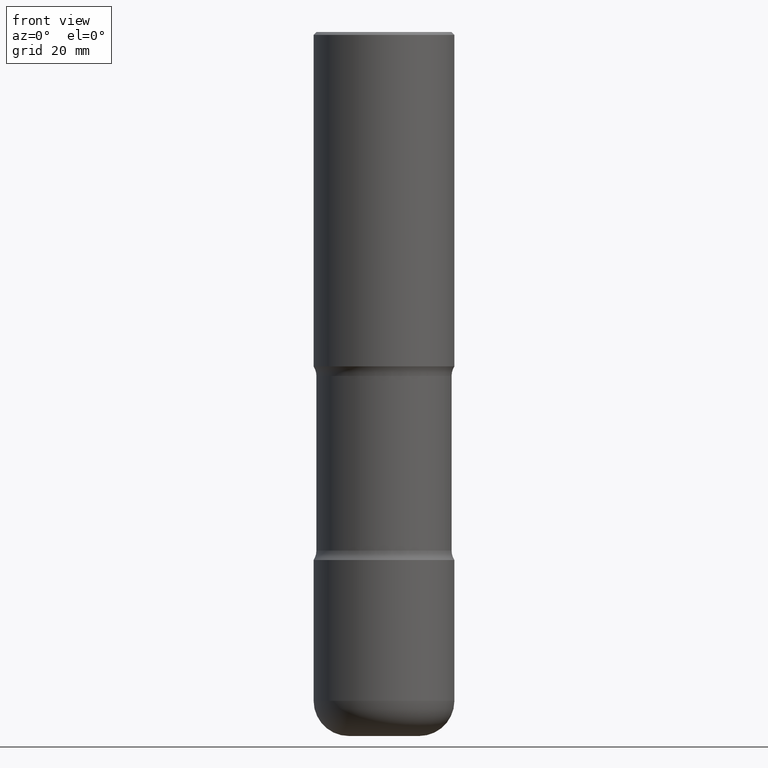
[diagram: clean part render]
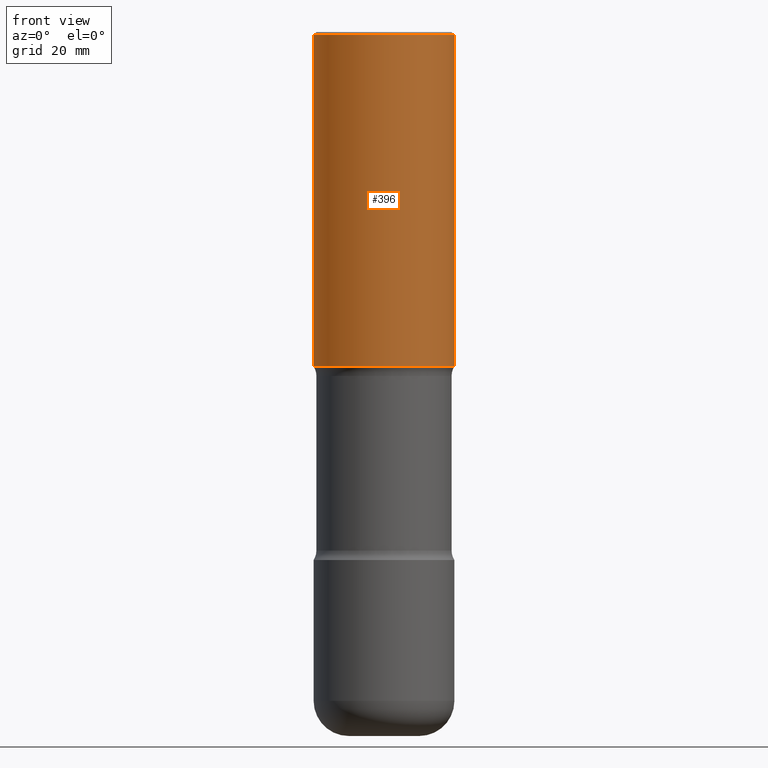
[diagram: same view with one face highlighted and labeled with its STEP entity id]
A machine part, front view. The second image highlights one B-rep face of the part: STEP entity #396.
In plain terms, the highlighted cylindrical surface (partial cylindrical patch) has radius 12.7 mm, axis along (-0, 0, 1).
Its self-contained STEP definition (entity closure, byte-faithful):
#18 = VERTEX_POINT ( 'NONE', #702 ) ;
#61 = CYLINDRICAL_SURFACE ( 'NONE', #482, 0.4999999999999998335 ) ;
#63 = EDGE_CURVE ( 'NONE', #286, #18, #226, .T. ) ;
#72 = AXIS2_PLACEMENT_3D ( 'NONE', #578, #452, #394 ) ;
#76 = CARTESIAN_POINT ( 'NONE',  ( 0.5000000000000000000, -1.178374951859560347E-14, -2.375000000000000000 ) ) ;
#77 = VERTEX_POINT ( 'NONE', #184 ) ;
#134 = CARTESIAN_POINT ( 'NONE',  ( 0.000000000000000000, 0.000000000000000000, 0.000000000000000000 ) ) ;
#145 = DIRECTION ( 'NONE',  ( -2.445468806185136877E-29, 3.491481338843145188E-15, 1.000000000000000000 ) ) ;
#180 = ORIENTED_EDGE ( 'NONE', *, *, #63, .T. ) ;
#184 = CARTESIAN_POINT ( 'NONE',  ( -0.4999999999999996669, 3.421651712066267691E-15, -0.02000000000000010797 ) ) ;
#207 = LINE ( 'NONE', #752, #620 ) ;
#226 = LINE ( 'NONE', #476, #749 ) ;
#262 = EDGE_CURVE ( 'NONE', #799, #286, #618, .T. ) ;
#276 = DIRECTION ( 'NONE',  ( 1.000000000000000000, -6.982962677686267499E-15, 4.876176775795936353E-29 ) ) ;
#284 = ORIENTED_EDGE ( 'NONE', *, *, #459, .F. ) ;
#286 = VERTEX_POINT ( 'NONE', #76 ) ;
#338 = ORIENTED_EDGE ( 'NONE', *, *, #773, .F. ) ;
#371 = CARTESIAN_POINT ( 'NONE',  ( 4.890937612370299433E-31, -6.982962677686328587E-17, -0.02000000000000010797 ) ) ;
#394 = DIRECTION ( 'NONE',  ( 1.000000000000000000, -6.982962677686265133E-15, 0.000000000000000000 ) ) ;
#396 = ADVANCED_FACE ( 'NONE', ( #509 ), #61, .T. ) ;
#426 = AXIS2_PLACEMENT_3D ( 'NONE', #371, #486, #792 ) ;
#447 = DIRECTION ( 'NONE',  ( -2.445468806185136597E-29, 3.491481338843145583E-15, 1.000000000000000000 ) ) ;
#452 = DIRECTION ( 'NONE',  ( -2.445468806185136597E-29, 3.491481338843145583E-15, 1.000000000000000000 ) ) ;
#459 = EDGE_CURVE ( 'NONE', #77, #18, #677, .T. ) ;
#476 = CARTESIAN_POINT ( 'NONE',  ( 0.4999999999999998335, -3.491481338843132566E-15, 2.438088387897967336E-29 ) ) ;
#482 = AXIS2_PLACEMENT_3D ( 'NONE', #134, #447, #276 ) ;
#486 = DIRECTION ( 'NONE',  ( -2.445468806185136597E-29, 3.491481338843145583E-15, 1.000000000000000000 ) ) ;
#509 = FACE_OUTER_BOUND ( 'NONE', #602, .T. ) ;
#563 = ORIENTED_EDGE ( 'NONE', *, *, #262, .T. ) ;
#573 = CARTESIAN_POINT ( 'NONE',  ( -0.5000000000000000000, -6.283352244641658772E-16, -2.375000000000000000 ) ) ;
#578 = CARTESIAN_POINT ( 'NONE',  ( 5.807988414689700538E-29, -8.292268179752471696E-15, -2.375000000000000000 ) ) ;
#585 = DIRECTION ( 'NONE',  ( -2.445468806185136877E-29, 3.491481338843145188E-15, 1.000000000000000000 ) ) ;
#602 = EDGE_LOOP ( 'NONE', ( #338, #563, #180, #284 ) ) ;
#618 = CIRCLE ( 'NONE', #72, 0.5000000000000000000 ) ;
#620 = VECTOR ( 'NONE', #585, 39.37007874015748143 ) ;
#677 = CIRCLE ( 'NONE', #426, 0.4999999999999996669 ) ;
#702 = CARTESIAN_POINT ( 'NONE',  ( 0.4999999999999996669, -3.500078625662626713E-15, -0.02000000000000010797 ) ) ;
#749 = VECTOR ( 'NONE', #145, 39.37007874015748143 ) ;
#752 = CARTESIAN_POINT ( 'NONE',  ( -0.4999999999999998335, 3.552713678800499746E-15, -2.459467545127452330E-29 ) ) ;
#773 = EDGE_CURVE ( 'NONE', #799, #77, #207, .T. ) ;
#792 = DIRECTION ( 'NONE',  ( 1.000000000000000000, -6.982962677686266711E-15, 0.000000000000000000 ) ) ;
#799 = VERTEX_POINT ( 'NONE', #573 ) ;